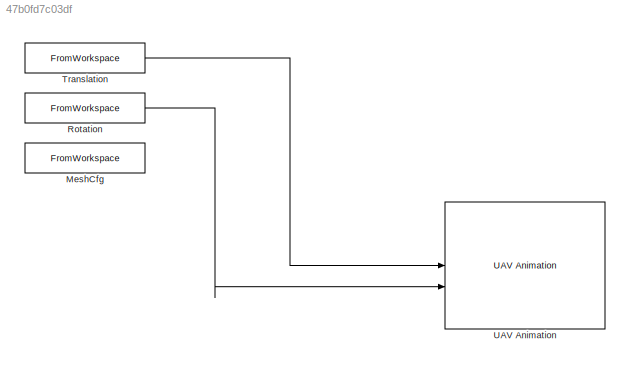
MODEL slx_47b0fd7c03df
KIND model
CONFIG AbsTol = auto
CONFIG EnableMultiTasking = off
CONFIG FixedStep = auto
CONFIG MaxStep = auto
CONFIG MinStep = auto
CONFIG RelTol = 1e-3
CONFIG SampleTimeConstraint = Unconstrained
CONFIG SolverName = VariableStepAuto
CONFIG StartTime = 0.0
CONFIG StopTime = 60
BLOCK [FromWorkspace] MeshCfg
  VariableName = MeshCfg
BLOCK [FromWorkspace] Rotation
  VariableName = Rot
BLOCK [FromWorkspace] Translation
  VariableName = Trans
BLOCK [Reference] UAV Animation  REF=uavutilslib/UAV Animation
  SourceBlock = uavutilslib/UAV Animation
  SourceType = uav.sluav.internal.system.UAVAnimation
LINE Rotation:1 -> UAV Animation:2
LINE Translation:1 -> UAV Animation:1
